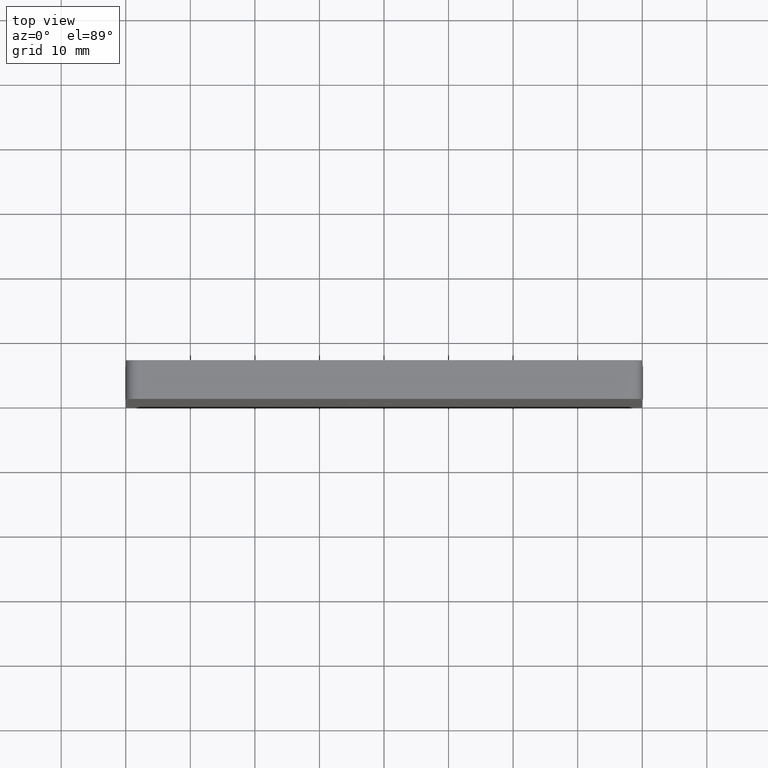
[diagram: clean part render]
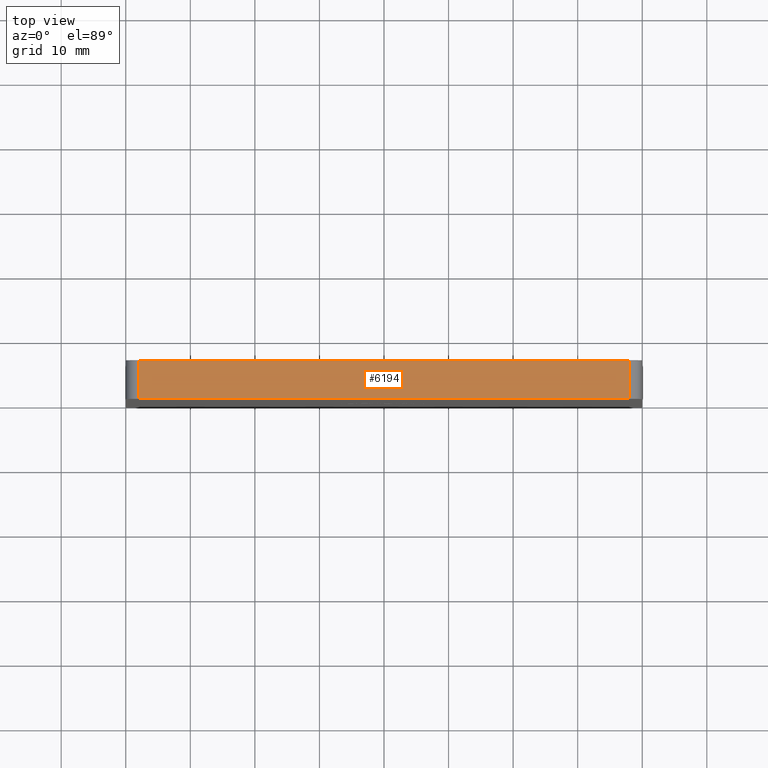
[diagram: same view with one face highlighted and labeled with its STEP entity id]
A machine part, top view. The second image highlights one B-rep face of the part: STEP entity #6194.
In plain terms, the highlighted planar face has unit normal (0, 0, -1).
Its self-contained STEP definition (entity closure, byte-faithful):
#119 = VERTEX_POINT ( 'NONE', #6415 ) ;
#942 = VERTEX_POINT ( 'NONE', #14894 ) ;
#1041 = VERTEX_POINT ( 'NONE', #8283 ) ;
#1052 = DIRECTION ( 'NONE',  ( -1.000000000000000000, 0.000000000000000000, -0.000000000000000000 ) ) ;
#1137 = DIRECTION ( 'NONE',  ( 1.000000000000000000, 0.000000000000000000, 0.000000000000000000 ) ) ;
#1362 = AXIS2_PLACEMENT_3D ( 'NONE', #12658, #10391, #1052 ) ;
#2867 = DIRECTION ( 'NONE',  ( 1.000000000000000000, 0.000000000000000000, 0.000000000000000000 ) ) ;
#2934 = CARTESIAN_POINT ( 'NONE',  ( 38.00000000000002132, 6.000000000000000000, 40.00000000000000711 ) ) ;
#3326 = PLANE ( 'NONE',  #1362 ) ;
#3443 = LINE ( 'NONE', #10144, #14717 ) ;
#3614 = CARTESIAN_POINT ( 'NONE',  ( 38.00000000000002132, 6.000000000000000000, 40.00000000000000711 ) ) ;
#5006 = VECTOR ( 'NONE', #2867, 1000.000000000000000 ) ;
#5027 = VECTOR ( 'NONE', #11109, 1000.000000000000000 ) ;
#5201 = LINE ( 'NONE', #2934, #10301 ) ;
#6194 = ADVANCED_FACE ( 'NONE', ( #13242 ), #3326, .F. ) ;
#6415 = CARTESIAN_POINT ( 'NONE',  ( -37.99999999999997868, 0.000000000000000000, 40.00000000000000711 ) ) ;
#7275 = EDGE_CURVE ( 'NONE', #1041, #119, #10294, .T. ) ;
#8086 = LINE ( 'NONE', #8548, #5006 ) ;
#8283 = CARTESIAN_POINT ( 'NONE',  ( -37.99999999999997868, 6.000000000000000000, 40.00000000000000711 ) ) ;
#8548 = CARTESIAN_POINT ( 'NONE',  ( -39.99999999999997868, 0.000000000000000000, 40.00000000000000711 ) ) ;
#8735 = EDGE_CURVE ( 'NONE', #1041, #11617, #3443, .T. ) ;
#9726 = ORIENTED_EDGE ( 'NONE', *, *, #7275, .T. ) ;
#10144 = CARTESIAN_POINT ( 'NONE',  ( -39.99999999999997868, 6.000000000000000000, 40.00000000000000711 ) ) ;
#10294 = LINE ( 'NONE', #13442, #5027 ) ;
#10301 = VECTOR ( 'NONE', #14562, 1000.000000000000000 ) ;
#10391 = DIRECTION ( 'NONE',  ( 0.000000000000000000, 0.000000000000000000, -1.000000000000000000 ) ) ;
#11109 = DIRECTION ( 'NONE',  ( 0.000000000000000000, -1.000000000000000000, 0.000000000000000000 ) ) ;
#11278 = EDGE_CURVE ( 'NONE', #942, #11617, #5201, .T. ) ;
#11617 = VERTEX_POINT ( 'NONE', #3614 ) ;
#11771 = EDGE_CURVE ( 'NONE', #119, #942, #8086, .T. ) ;
#12658 = CARTESIAN_POINT ( 'NONE',  ( -39.99999999999997868, 6.000000000000000000, 40.00000000000000711 ) ) ;
#13011 = ORIENTED_EDGE ( 'NONE', *, *, #11771, .T. ) ;
#13242 = FACE_OUTER_BOUND ( 'NONE', #14287, .T. ) ;
#13365 = ORIENTED_EDGE ( 'NONE', *, *, #8735, .F. ) ;
#13442 = CARTESIAN_POINT ( 'NONE',  ( -37.99999999999997868, 6.000000000000000000, 40.00000000000000711 ) ) ;
#14287 = EDGE_LOOP ( 'NONE', ( #13365, #9726, #13011, #14505 ) ) ;
#14505 = ORIENTED_EDGE ( 'NONE', *, *, #11278, .T. ) ;
#14562 = DIRECTION ( 'NONE',  ( -0.000000000000000000, 1.000000000000000000, -0.000000000000000000 ) ) ;
#14717 = VECTOR ( 'NONE', #1137, 1000.000000000000000 ) ;
#14894 = CARTESIAN_POINT ( 'NONE',  ( 38.00000000000002132, 0.000000000000000000, 40.00000000000000711 ) ) ;